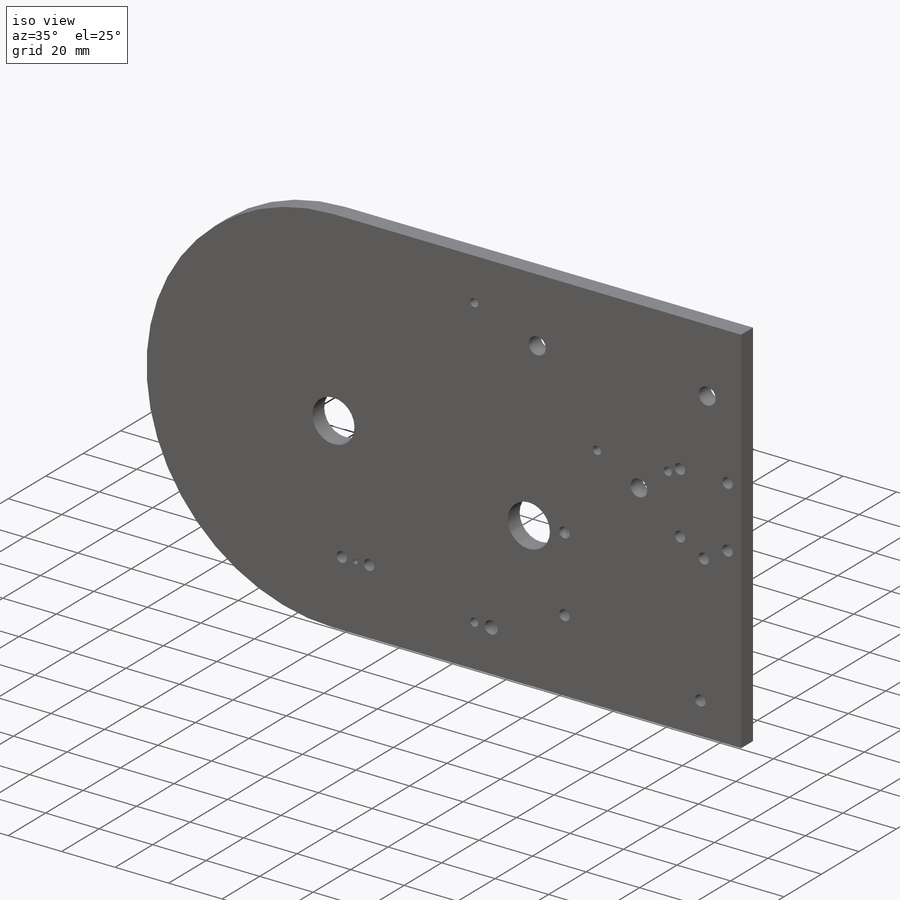
[diagram: iso view]
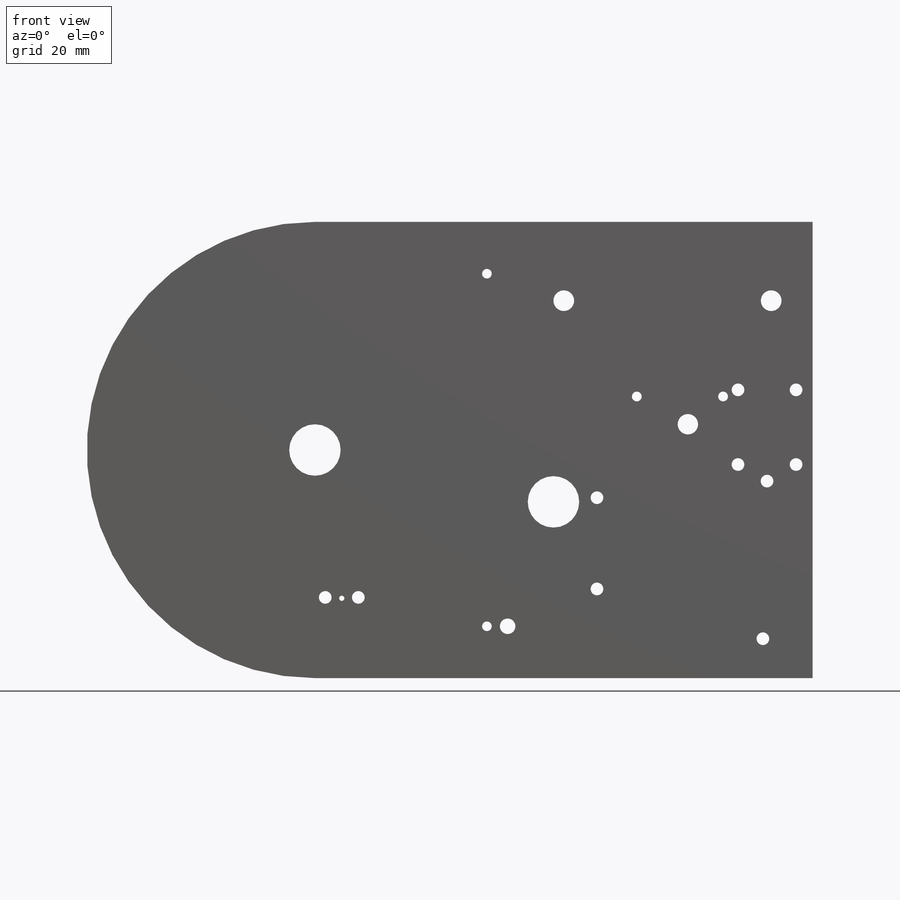
[diagram: front view]
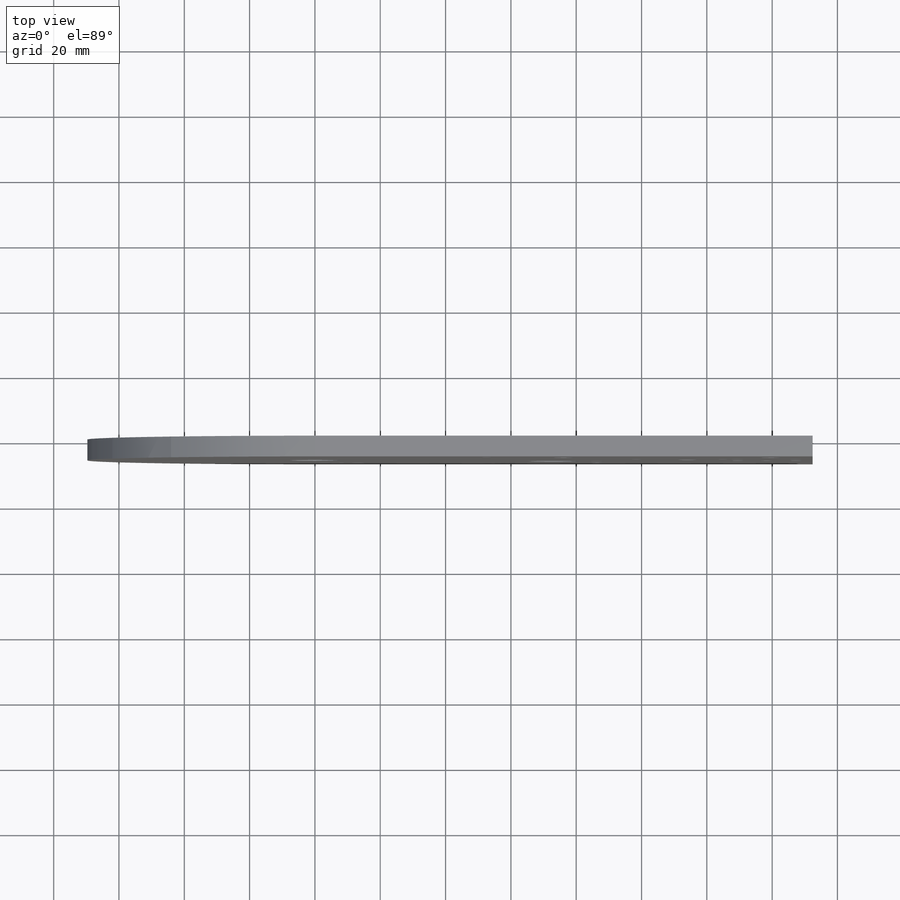
[diagram: top view]
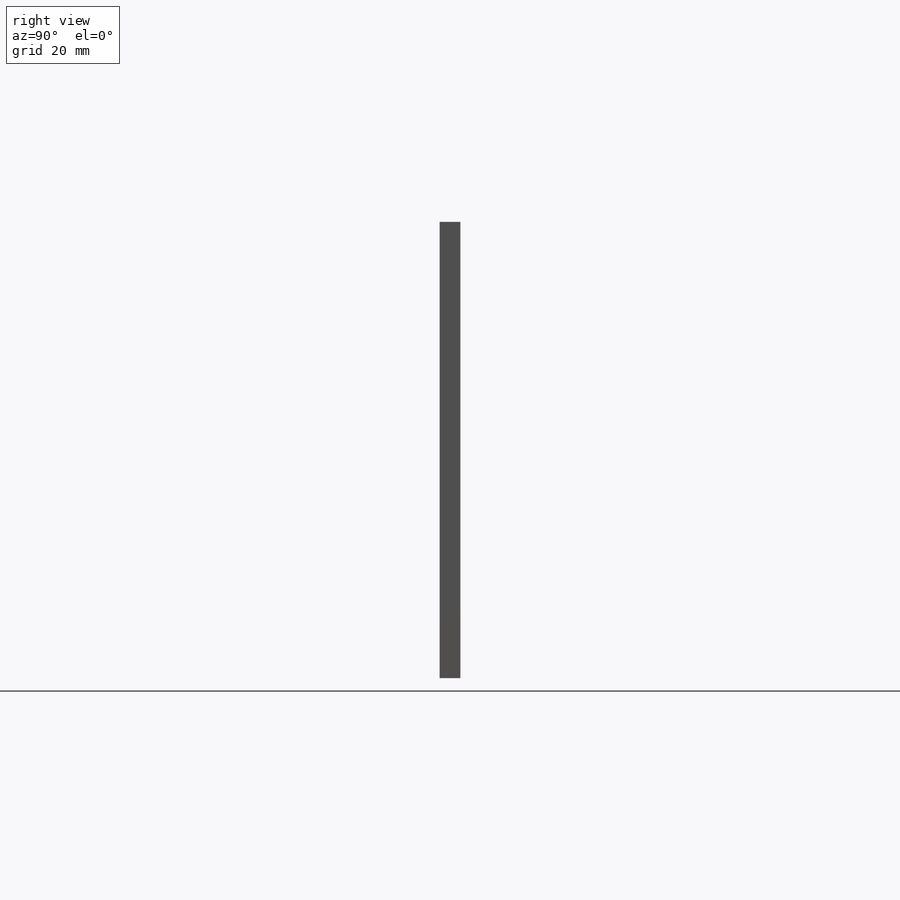
[diagram: right view]
SOLIDWORKS PART (.sldprt)
format: sldprt  version: not decoded by parser v0  size: 468,992 bytes
history: native  units: mm
features: sketch x14, cut_extrude x7, hole x3, material x1, extrude x1, fillet x1 (+12 scaffold rows collapsed)
feature tree (39):
  scaffold x12  (default folders/planes/origin — collapsed)
  material  "Acrylic (Medium-high impact)"
  sketch  "Sketch1"  dims[c1.D1=135.2804mm c1.D2=~130.196082mm c1.D5=3.1242mm c1.D6=15.748mm c1.D4=69.85mm c1.D3=~49.76005mm c2.D3=45.0deg c2.D4=6.35mm c2.D7=6.35mm c3.D3=152.4mm]
  extrude  "Boss-Extrude1"  Depth=6.35mm
  sketch  "Sketch2"  dims[D2=6.35mm D1=19.05mm D3=63.5mm D4=12.7mm D5=45.72mm]
  cut_extrude  "Cut-Extrude1"  [1 undecoded]
  sketch  "Sketch3"  dims[D1=6.35mm]
  cut_extrude  "Cut-Extrude2"  [1 undecoded]
  sketch  "Sketch5"  dims[c1.D1=3.175mm c1.D5=50.8mm c1.D7=36.8mm c1.D6=~75.321134mm c2.D5=~81.434645mm c2.D6=~35.983333mm c2.D2=15.875mm c2.D3=15.875mm c2.D4=50.8mm c3.D6=4.7625mm c3.D7=25.4mm c3.D8=25.4mm c3.D5=4.7625mm c4.D6=4.7625mm c4.D7=~228.378503deg c4.D8=55.835deg]
  cut_extrude  "Cut-Extrude4"  [1 undecoded]
  sketch  "Sketch7"  dims[c1.D3=~71.966836mm c1.D1=25.4mm c1.D2=114.3mm c1.D4=28.575mm c1.D5=28.575mm c2.D4=82.55mm c3.D4=~135.099607deg c4.D4=~116.946815mm c5.D4=~135.099607deg c5.D5=31.75mm c6.D5=135.1deg c6.D1=25.4mm c6.D4=12.7mm c7.D5=12.7mm c7.D6=69.85mm c8.D6=~330.737785deg c8.D7=19.05mm c9.D7=135.1deg]
  cut_extrude  "Cut-Extrude5"  [1 undecoded]
  fillet  "Fillet1"  Radius=25.4mm
  sketch  "Sketch8"  dims[D1=0.127mm]
  cut_extrude  "Cut-Extrude6"  [1 undecoded]
  hole  "#4 Clearance Hole1"  Diameter=2.9464mm Depth=6.35mm
  sketch  "Sketch10"  dims[D1=6.35mm D2=15.875mm D3=15.875mm]
  sketch  "Sketch9"  dims[hole-wizard template sketch: 61 standard entries collapsed; hole parameters above]
  hole  "#4 Clearance Hole2"  Diameter=3.8862mm Depth=6.35mm
  sketch  "Sketch12"
  sketch  "Sketch11"  dims[hole-wizard template sketch: 59 standard entries collapsed; hole parameters kept: c18.Thru Hole Dia.=3.8862mm c18.Thru Hole Depth=6.35mm]
  sketch  "Sketch13"  dims[D1=1.5875mm]
  cut_extrude  "Cut-Extrude7"  [1 undecoded]
  sketch  "Sketch14"  dims[D1=4.7625mm D2=6.35mm]
  cut_extrude  "Cut-Extrude8"  [1 undecoded]
  hole  "#2 Clearance Hole1"  Diameter=2.9972mm Depth=6.35mm
  sketch  "Sketch16"
  sketch  "Sketch15"  dims[hole-wizard template sketch: 59 standard entries collapsed; hole parameters kept: c18.Thru Hole Dia.=2.9972mm c18.Thru Hole Depth=6.35mm]
decode coverage: 17 of 26 modeling features carry decoded parameters
note: ~ marks probable driven/reference dimensions
note: 7 parameter values undecoded
summary: no parameter record found for 7 features
note: suppression state not decoded; provenance and decode notes live in map.json
